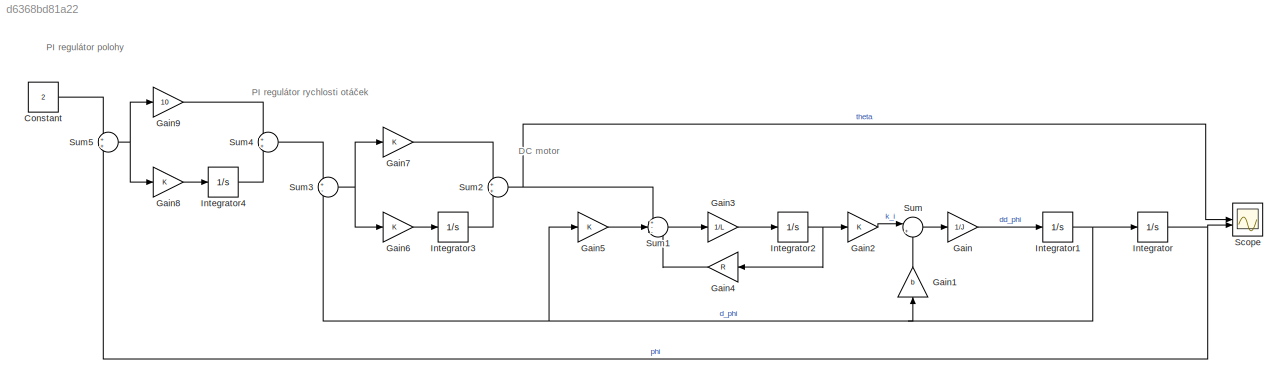
MODEL slx_d6368bd81a22
KIND model
CONFIG AbsTol = auto
CONFIG EnableMultiTasking = off
CONFIG FixedStep = auto
CONFIG MaxStep = auto
CONFIG MinStep = auto
CONFIG RelTol = 1e-3
CONFIG SampleTimeConstraint = Unconstrained
CONFIG SolverName = VariableStepAuto
CONFIG StartTime = 0.0
CONFIG StopTime = 10.0
BLOCK [Constant] Constant
  Value = 2
BLOCK [Gain] Gain
  Gain = 1/J
BLOCK [Gain] Gain1
  Gain = b
  NameLocation = right
BLOCK [Gain] Gain2
  Gain = K
BLOCK [Gain] Gain3
  Gain = 1/L
BLOCK [Gain] Gain4
  Gain = R
BLOCK [Gain] Gain5
  Gain = K
BLOCK [Gain] Gain6
BLOCK [Gain] Gain7
BLOCK [Gain] Gain8
BLOCK [Gain] Gain9
  Gain = 10
BLOCK [Integrator] Integrator
BLOCK [Integrator] Integrator1
BLOCK [Integrator] Integrator2
BLOCK [Integrator] Integrator3
BLOCK [Integrator] Integrator4
BLOCK [Scope] Scope
  Floating = off
  NumInputPorts = 2
  ScopeSpecificationString = Simulink.scopes.TimeScopeBlockCfg('CurrentConfiguration', extmgr.ConfigurationSet(extmgr.Configuration('Core','General UI',true),extmgr.Configuration('Core','Source UI',true),extmgr.Configuration('Sources','WiredSimulink',true),extmgr.Configuration('Visuals','Time Domain',true,'SerializedDisplays',{struct('MinYLimReal','-519254167745081562603946915678235501002752.00000','MaxYLimReal','467328750970...<+2434ch>
BLOCK [Sum] Sum
  Inputs = |+-
BLOCK [Sum] Sum1
  Inputs = +--
BLOCK [Sum] Sum2
BLOCK [Sum] Sum3
  Inputs = +-
BLOCK [Sum] Sum4
BLOCK [Sum] Sum5
ANNOTATION (root): DC motor
ANNOTATION (root): PI regulátor polohy
ANNOTATION (root): PI regulátor rychlosti otáček
LINE Constant:1 -> Sum5:1
LINE Gain1:1 -> Sum:2
LINE Gain2:1 -> Sum:1
LINE Gain3:1 -> Integrator2:1
LINE Gain4:1 -> Sum1:3
LINE Gain5:1 -> Sum1:2
LINE Gain6:1 -> Integrator3:1
LINE Gain7:1 -> Sum2:1
LINE Gain8:1 -> Integrator4:1
LINE Gain9:1 -> Sum4:1
LINE Gain:1 -> Integrator1:1
NET Integrator1:1 -> Gain1:1, Gain5:1, Integrator:1, Sum3:2
NET Integrator2:1 -> Gain2:1, Gain4:1
LINE Integrator3:1 -> Sum2:2
LINE Integrator4:1 -> Sum4:2
NET Integrator:1 -> Scope:2, Sum5:2
LINE Sum1:1 -> Gain3:1
NET Sum2:1 -> Scope:1, Sum1:1
NET Sum3:1 -> Gain6:1, Gain7:1
LINE Sum4:1 -> Sum3:1
NET Sum5:1 -> Gain8:1, Gain9:1
LINE Sum:1 -> Gain:1
note: NET lines group one-source signal fan-out (src -> all destinations, sorted); 1:1 wires keep LINE
